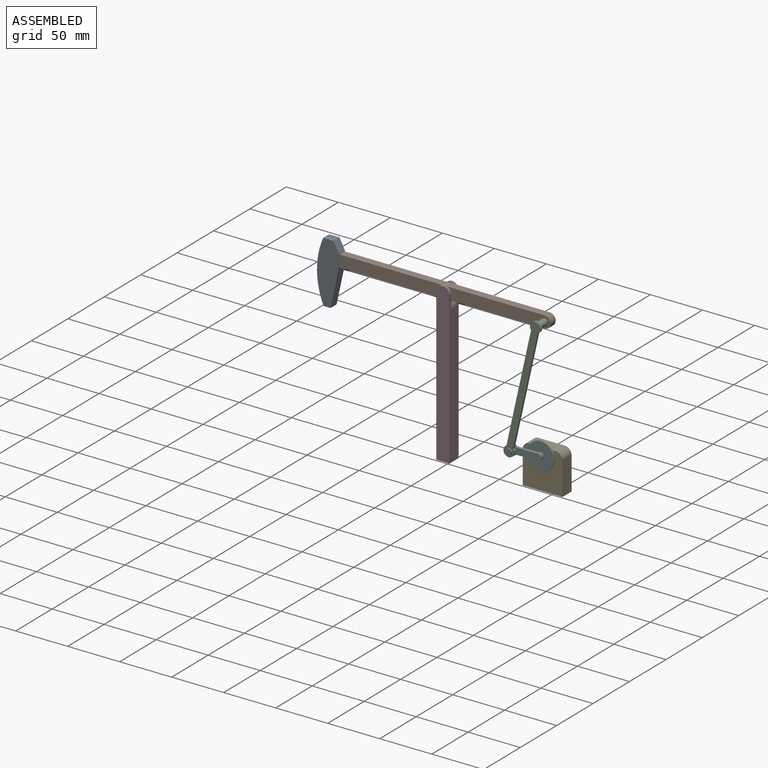
[diagram: assembled view]
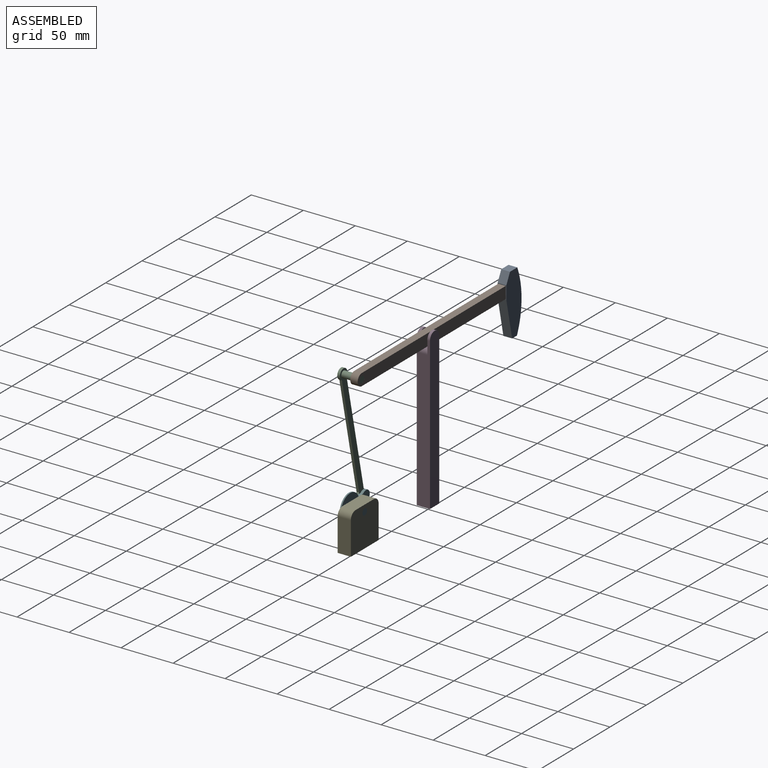
[diagram: assembled view, second angle]
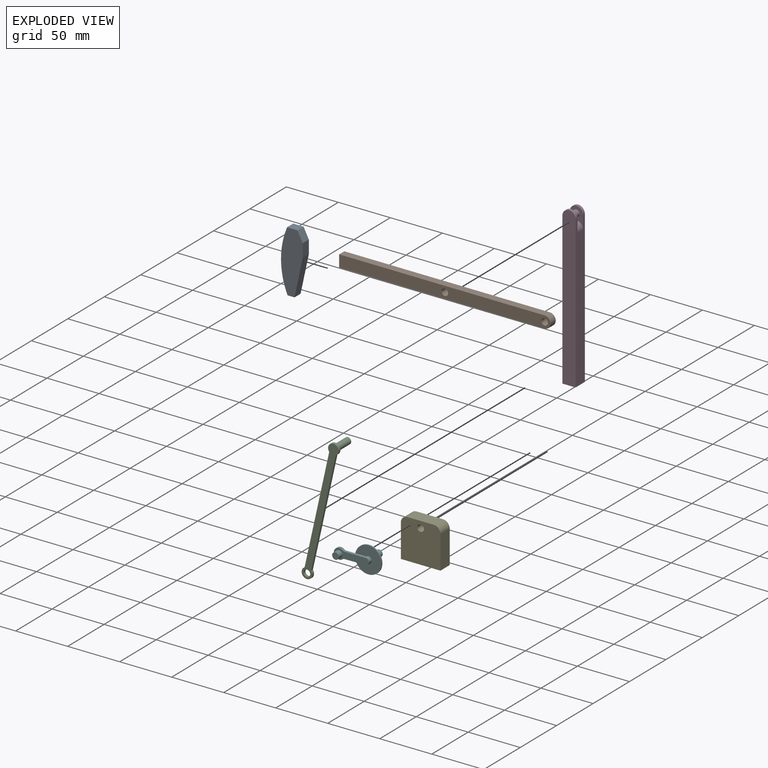
[diagram: exploded view]
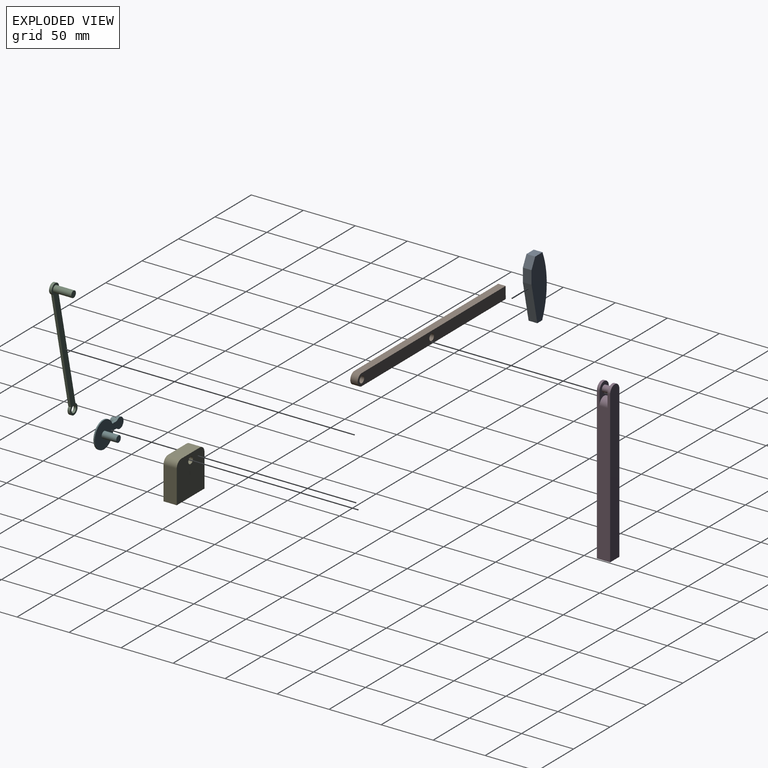
[diagram: exploded view, second angle]
ASSEMBLY  parts=6 mates=5
PART A: 8 faces, bbox 20.9x8.4x59 mm
  f0: plane 8.38x6.66mm, normal (0,0,-1), area 55.8mm2, adj f1,f5,f6,f7
  f1: plane 36.42x8.38mm, normal (0.98,0,-0.21), area 312.4mm2, adj f0,f2,f6,f7
  f2: plane 12.7x8.38mm, normal (1,0,0), area 106.5mm2, adj f1,f3,f6,f7
  f3: plane 9.91x8.38mm, normal (0.89,0,0.45), area 93.1mm2, adj f2,f4,f6,f7
  f4: plane 9.98x8.38mm, normal (0,0,1), area 83.7mm2, adj f3,f5,f6,f7
  f5: cylinder r=74.63mm len=59.03mm, axis (0,1,0), area 508.7mm2, adj f0,f4,f6,f7
  f6: plane 59.03x20.86mm, normal (0,-1,0), area 945.1mm2, adj f0,f1,f2,f3,f4,f5
  f7: plane 59.03x20.86mm, normal (0,1,0), area 945.1mm2, adj f0,f1,f2,f3,f4,f5
PART B: 8 faces, bbox 203.2x7.1x11.4 mm
  f0: cylinder r=5.71mm len=11.43mm, axis (0,1,0), area 127.7mm2, adj f1,f5,f6,f7
  f1: plane 197.49x7.11mm, normal (0,0,1), area 1404.5mm2, adj f0,f2,f6,f7
  f2: plane 11.43x7.11mm, normal (-1,0,0), area 81.3mm2, adj f1,f5,f6,f7
  f3: cylinder r=3.17mm len=7.11mm, axis (0,1,0), area 141.9mm2, adj f6,f7
  f4: cylinder r=3.17mm len=7.11mm, axis (0,1,0), area 141.9mm2, adj f6,f7
  f5: plane 197.49x7.11mm, normal (0,0,-1), area 1404.5mm2, adj f0,f2,f6,f7
  f6: plane 203.2x11.43mm, normal (0,-1,0), area 2245.2mm2, adj f0,f1,f2,f3,f4,f5
  f7: plane 203.2x11.43mm, normal (0,1,0), area 2245.2mm2, adj f0,f1,f2,f3,f4,f5
PART C: 9 faces, bbox 35.6x20.1x124.5 mm
  f0: cylinder r=5.08mm len=10.16mm, axis (0,-1,0), area 63.7mm2, adj f1,f4,f5,f6
  f1: plane 106.58x23.68mm, normal (0.98,0,-0.22), area 277.3mm2, adj f0,f2,f5,f6
  f2: cylinder r=5.08mm len=10.16mm, axis (0,-1,0), area 63.7mm2, adj f1,f4,f5,f6
  f3: cylinder r=3.17mm len=6.35mm, axis (0,-1,0), area 50.7mm2, adj f5,f6
  f4: plane 106.58x23.68mm, normal (-0.98,0,0.22), area 277.3mm2, adj f0,f2,f5,f6
  f5: plane 124.48x35.56mm, normal (0,1,0), area 782.4mm2, adj f0,f1,f2,f3,f4,f7
  f6: plane 124.48x35.56mm, normal (0,-1,0), area 814.1mm2, adj f0,f1,f2,f3,f4
  f7: cylinder r=3.17mm len=17.53mm, axis (0,-1,0), area 349.6mm2, adj f5,f8
  f8: plane 6.35x6.35mm, normal (0,1,0), area 31.7mm2, adj f7
PART D: 11 faces, bbox 12.7x12.7x152.4 mm
  f0: cylinder r=6.35mm len=12.7mm, axis (0,1,0), area 50.7mm2, adj f1,f3,f6,f9
  f1: plane 146.05x12.7mm, normal (-1,0,0), area 1758.1mm2, adj f0,f2,f4,f5,f6,f7,f9,f10
  f2: plane 12.7x12.7mm, normal (0,0,-1), area 161.3mm2, adj f1,f3,f5,f6
  f3: plane 146.05x12.7mm, normal (1,0,0), area 1758.1mm2, adj f0,f2,f4,f5,f6,f7,f9,f10
  f4: cylinder r=6.35mm len=12.7mm, axis (0,1,0), area 50.7mm2, adj f1,f3,f5,f10
  f5: plane 152.4x12.7mm, normal (0,-1,0), area 1918.2mm2, adj f1,f2,f3,f4
  f6: plane 152.4x12.7mm, normal (0,1,0), area 1918.2mm2, adj f0,f1,f2,f3
  f7: cylinder r=6.35mm len=12.7mm, axis (0,-1,0), area 152mm2, adj f1,f3,f9,f10
  f8: cylinder r=3.17mm len=7.62mm, axis (0,-1,0), area 152mm2, adj f9,f10
  f9: plane 19.05x12.7mm, normal (0,-1,0), area 129.6mm2, adj f0,f1,f3,f7,f8
  f10: plane 19.05x12.7mm, normal (0,1,0), area 129.6mm2, adj f1,f3,f4,f7,f8
PART E: 9 faces, bbox 38.1x12.7x38.1 mm
  f0: plane 38.1x12.7mm, normal (0,0,-1), area 483.9mm2, adj f1,f6,f7,f8
  f1: plane 31.75x12.7mm, normal (1,0,0), area 403.2mm2, adj f0,f2,f7,f8
  f2: cylinder r=6.35mm len=12.7mm, axis (0,1,0), area 126.7mm2, adj f1,f3,f7,f8
  f3: plane 25.4x12.7mm, normal (0,0,1), area 322.6mm2, adj f2,f4,f7,f8
  f4: cylinder r=6.35mm len=12.7mm, axis (0,1,0), area 126.7mm2, adj f3,f6,f7,f8
  f5: cylinder r=3.17mm len=12.7mm, axis (0,1,0), area 253.4mm2, adj f7,f8
  f6: plane 31.75x12.7mm, normal (-1,0,0), area 403.2mm2, adj f0,f4,f7,f8
  f7: plane 38.1x38.1mm, normal (0,-1,0), area 1402.6mm2, adj f0,f1,f2,f3,f4,f5,f6
  f8: plane 38.1x38.1mm, normal (0,1,0), area 1402.6mm2, adj f0,f1,f2,f3,f4,f5,f6
PART F: 15 faces, bbox 43.2x24.1x25.4 mm
  f0: cylinder r=3.17mm len=13.97mm, axis (0,-1,0), area 278.7mm2, adj f1,f4
  f1: plane 6.35x6.35mm, normal (0,1,0), area 31.7mm2, adj f0
  f2: cylinder r=12.7mm len=25.4mm, axis (0,1,0), area 101.3mm2, adj f3,f4
  f3: plane 25.4x25.4mm, normal (0,-1,0), area 475mm2, adj f2,f5
  f4: plane 25.4x25.4mm, normal (0,1,0), area 475mm2, adj f0,f2
  f5: cylinder r=3.17mm len=6.35mm, axis (0,1,0), area 50.7mm2, adj f3,f6,f7,f11,f12
  f6: plane 30.48x10.16mm, normal (0,1,0), area 196.9mm2, adj f5,f7,f8,f9,f10,f11
  f7: plane 20.13x2.54mm, normal (0,0,1), area 51.1mm2, adj f5,f6,f8,f12
  f8: cylinder r=3.17mm len=2.54mm, axis (0,1,0), area 5.6mm2, adj f6,f7,f9,f12
  f9: cylinder r=5.08mm len=10.16mm, axis (0,1,0), area 58.4mm2, adj f6,f8,f10,f12
  f10: cylinder r=3.17mm len=2.54mm, axis (0,1,0), area 5.6mm2, adj f6,f9,f11,f12
  f11: plane 20.13x2.54mm, normal (0,0,-1), area 51.1mm2, adj f5,f6,f10,f12
  f12: plane 33.66x10.16mm, normal (0,-1,0), area 196.9mm2, adj f5,f7,f8,f9,f10,f11,f13
  f13: cylinder r=3.17mm len=6.35mm, axis (0,1,0), area 101.3mm2, adj f12,f14
  f14: plane 6.35x6.35mm, normal (0,-1,0), area 31.7mm2, adj f13
PLACE A rot(axis=(0,1,0),0.1deg) t=(-0.14,0,-0.02)mm
PLACE B rot(axis=(0,1,0),0.1deg) t=(-0.14,0,-0.02)mm
PLACE C rot(axis=(0,-1,0),0deg) t=(0,0,-0.11)mm
PLACE D at identity fixed
PLACE E at identity fixed
PLACE F rot(axis=(0,-1,0),0.3deg) t=(0.14,0,-0.43)mm
MATE fastened A.f2 <-> B.f2  axis (1,0,0) through (-101.6,0,146.15)mm
MATE revolute B.f4 <-> D.f8  axis (0,1,0) through (0,0,146.05)mm
MATE revolute C.f0 <-> F.f9  axis (0,-1,0) through (70.49,-15.24,31.64)mm
MATE revolute C.f2 <-> B.f0  axis (0,1,0) through (95.88,3.56,145.96)mm
MATE revolute F.f0 <-> E.f5  axis (0,1,0) through (95.89,6.35,31.75)mm
